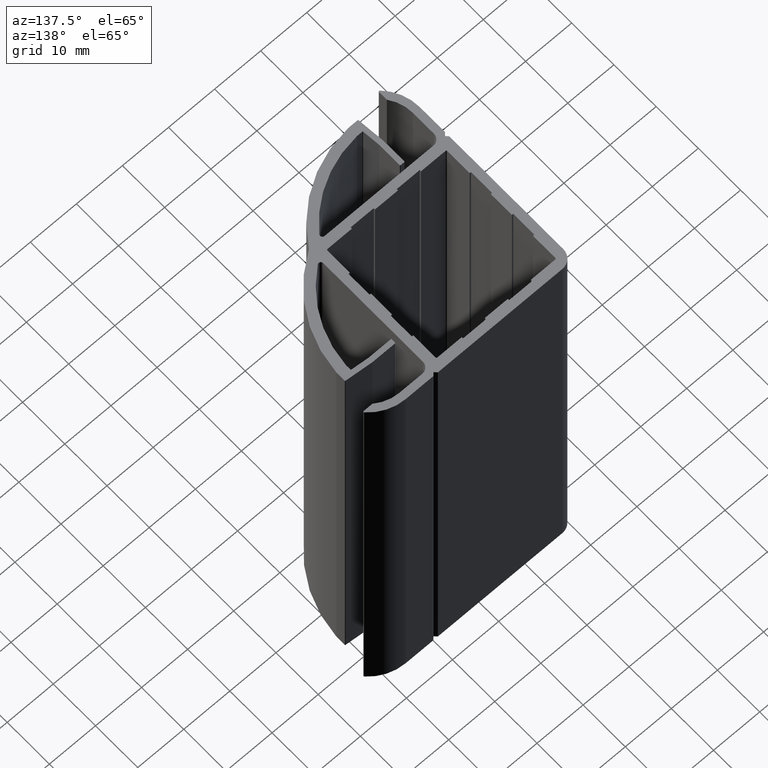
[diagram: clean part render]
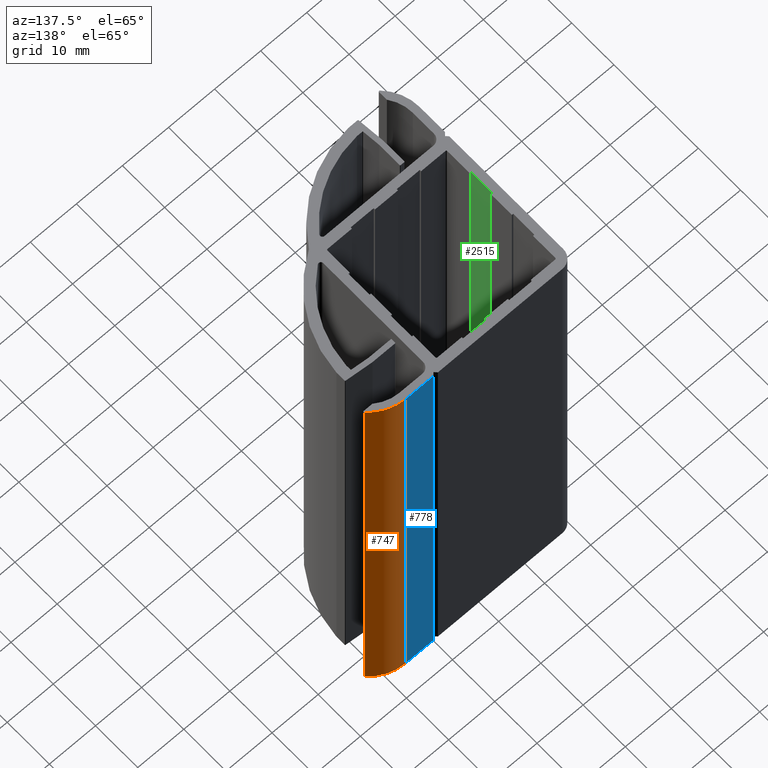
[diagram: same view with three faces highlighted in distinct colors, each labeled with its STEP entity id]
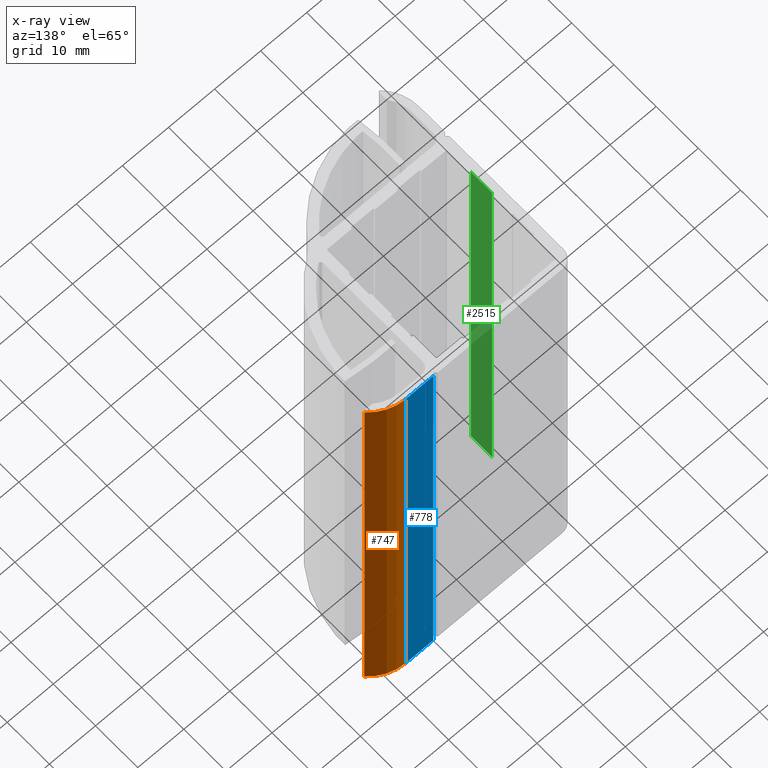
[diagram: x-ray of the same camera — body ghosted, the three highlighted faces saturated]
A machine part, auxiliary view with three faces highlighted in distinct colors.
The next image is the same camera in x-ray (body ghosted, the three faces saturated) — at least one of them is partly hidden behind the body in this view.
Their STEP definitions:

[orange] entity #747 — the highlighted cylindrical surface (partial cylindrical patch) has radius 9 mm, axis along (0, 0, 1).
#687=CARTESIAN_POINT('',(42.971910112358955,13.253885072808572,-100.0));
#688=VERTEX_POINT('',#687);
#696=CARTESIAN_POINT('',(42.971910112358955,13.253885072808572,0.0));
#697=VERTEX_POINT('',#696);
#698=CARTESIAN_POINT('',(42.971910112358955,13.253885072808572,-100.0));
#699=DIRECTION('',(0.0,0.0,1.0));
#700=VECTOR('',#699,100.0);
#701=LINE('',#698,#700);
#702=EDGE_CURVE('',#688,#697,#701,.T.);
#715=CARTESIAN_POINT('',(36.500000000000000,6.999736090129403,-100.0));
#716=DIRECTION('',(0.0,0.0,1.0));
#717=DIRECTION('',(1.0,0.0,0.0));
#718=AXIS2_PLACEMENT_3D('',#715,#716,#717);
#719=CYLINDRICAL_SURFACE('',#718,9.0);
#720=CARTESIAN_POINT('',(36.500000000000000,15.999736090129403,-100.0));
#721=VERTEX_POINT('',#720);
#722=CARTESIAN_POINT('',(36.500000000000000,6.999736090129403,-100.0));
#723=DIRECTION('',(0.0,0.0,1.0));
#724=DIRECTION('',(1.0,0.0,0.0));
#725=AXIS2_PLACEMENT_3D('',#722,#723,#724);
#726=CIRCLE('',#725,9.0);
#727=EDGE_CURVE('',#688,#721,#726,.T.);
#728=ORIENTED_EDGE('',*,*,#727,.T.);
#729=CARTESIAN_POINT('',(36.500000000000000,15.999736090129403,0.0));
#730=VERTEX_POINT('',#729);
#731=CARTESIAN_POINT('',(36.500000000000000,15.999736090129403,-100.0));
#732=DIRECTION('',(0.0,0.0,1.0));
#733=VECTOR('',#732,100.0);
#734=LINE('',#731,#733);
#735=EDGE_CURVE('',#721,#730,#734,.T.);
#736=ORIENTED_EDGE('',*,*,#735,.T.);
#737=CARTESIAN_POINT('',(36.500000000000000,6.999736090129403,0.0));
#738=DIRECTION('',(0.0,0.0,1.0));
#739=DIRECTION('',(1.0,0.0,0.0));
#740=AXIS2_PLACEMENT_3D('',#737,#738,#739);
#741=CIRCLE('',#740,9.0);
#742=EDGE_CURVE('',#697,#730,#741,.T.);
#743=ORIENTED_EDGE('',*,*,#742,.F.);
#744=ORIENTED_EDGE('',*,*,#702,.F.);
#745=EDGE_LOOP('',(#728,#736,#743,#744));
#746=FACE_OUTER_BOUND('',#745,.T.);
#747=ADVANCED_FACE('',(#746),#719,.T.);

[blue] entity #778 — the highlighted planar face has unit normal (0, 1, 0).
#720=CARTESIAN_POINT('',(36.500000000000000,15.999736090129403,-100.0));
#721=VERTEX_POINT('',#720);
#729=CARTESIAN_POINT('',(36.500000000000000,15.999736090129403,0.0));
#730=VERTEX_POINT('',#729);
#731=CARTESIAN_POINT('',(36.500000000000000,15.999736090129403,-100.0));
#732=DIRECTION('',(0.0,0.0,1.0));
#733=VECTOR('',#732,100.0);
#734=LINE('',#731,#733);
#735=EDGE_CURVE('',#721,#730,#734,.T.);
#748=CARTESIAN_POINT('',(36.500000000000000,15.999736090129403,-100.0));
#749=DIRECTION('',(0.0,1.0,0.0));
#750=DIRECTION('',(-1.0,0.0,0.0));
#751=AXIS2_PLACEMENT_3D('',#748,#749,#750);
#752=PLANE('',#751);
#753=CARTESIAN_POINT('',(30.503249249288046,15.999736090129403,-100.0));
#754=VERTEX_POINT('',#753);
#755=CARTESIAN_POINT('',(36.500000000000000,15.999736090129403,-100.0));
#756=DIRECTION('',(-1.0,0.0,0.0));
#757=VECTOR('',#756,5.996750750711954);
#758=LINE('',#755,#757);
#759=EDGE_CURVE('',#721,#754,#758,.T.);
#760=ORIENTED_EDGE('',*,*,#759,.T.);
#761=CARTESIAN_POINT('',(30.503249249288046,15.999736090129403,0.0));
#762=VERTEX_POINT('',#761);
#763=CARTESIAN_POINT('',(30.503249249288046,15.999736090129403,-100.0));
#764=DIRECTION('',(0.0,0.0,1.0));
#765=VECTOR('',#764,100.0);
#766=LINE('',#763,#765);
#767=EDGE_CURVE('',#754,#762,#766,.T.);
#768=ORIENTED_EDGE('',*,*,#767,.T.);
#769=CARTESIAN_POINT('',(36.500000000000000,15.999736090129403,0.0));
#770=DIRECTION('',(-1.0,0.0,0.0));
#771=VECTOR('',#770,5.996750750711954);
#772=LINE('',#769,#771);
#773=EDGE_CURVE('',#730,#762,#772,.T.);
#774=ORIENTED_EDGE('',*,*,#773,.F.);
#775=ORIENTED_EDGE('',*,*,#735,.F.);
#776=EDGE_LOOP('',(#760,#768,#774,#775));
#777=FACE_OUTER_BOUND('',#776,.T.);
#778=ADVANCED_FACE('',(#777),#752,.T.);

[green] entity #2515 — the highlighted planar face has unit normal (1, 0, 0).
#2459=CARTESIAN_POINT('',(1.699999999998909,-6.500263909870597,-100.0));
#2460=VERTEX_POINT('',#2459);
#2467=CARTESIAN_POINT('',(1.699999999998909,-6.500263909870597,0.0));
#2468=VERTEX_POINT('',#2467);
#2469=CARTESIAN_POINT('',(1.699999999998909,-6.500263909870597,-100.0));
#2470=DIRECTION('',(0.0,0.0,1.0));
#2471=VECTOR('',#2470,100.0);
#2472=LINE('',#2469,#2471);
#2473=EDGE_CURVE('',#2460,#2468,#2472,.T.);
#2485=CARTESIAN_POINT('',(1.699999999998909,-6.500263909870597,-100.0));
#2486=DIRECTION('',(1.0,0.0,0.0));
#2487=DIRECTION('',(0.0,1.0,0.0));
#2488=AXIS2_PLACEMENT_3D('',#2485,#2486,#2487);
#2489=PLANE('',#2488);
#2490=CARTESIAN_POINT('',(1.699999999998909,-1.500263909870597,-100.0));
#2491=VERTEX_POINT('',#2490);
#2492=CARTESIAN_POINT('',(1.699999999998909,-6.500263909870597,-100.0));
#2493=DIRECTION('',(0.0,1.0,0.0));
#2494=VECTOR('',#2493,5.0);
#2495=LINE('',#2492,#2494);
#2496=EDGE_CURVE('',#2460,#2491,#2495,.T.);
#2497=ORIENTED_EDGE('',*,*,#2496,.T.);
#2498=CARTESIAN_POINT('',(1.699999999998909,-1.500263909870597,0.0));
#2499=VERTEX_POINT('',#2498);
#2500=CARTESIAN_POINT('',(1.699999999998909,-1.500263909870597,-100.0));
#2501=DIRECTION('',(0.0,0.0,1.0));
#2502=VECTOR('',#2501,100.0);
#2503=LINE('',#2500,#2502);
#2504=EDGE_CURVE('',#2491,#2499,#2503,.T.);
#2505=ORIENTED_EDGE('',*,*,#2504,.T.);
#2506=CARTESIAN_POINT('',(1.699999999998909,-6.500263909870597,0.0));
#2507=DIRECTION('',(0.0,1.0,0.0));
#2508=VECTOR('',#2507,5.0);
#2509=LINE('',#2506,#2508);
#2510=EDGE_CURVE('',#2468,#2499,#2509,.T.);
#2511=ORIENTED_EDGE('',*,*,#2510,.F.);
#2512=ORIENTED_EDGE('',*,*,#2473,.F.);
#2513=EDGE_LOOP('',(#2497,#2505,#2511,#2512));
#2514=FACE_OUTER_BOUND('',#2513,.T.);
#2515=ADVANCED_FACE('',(#2514),#2489,.T.);